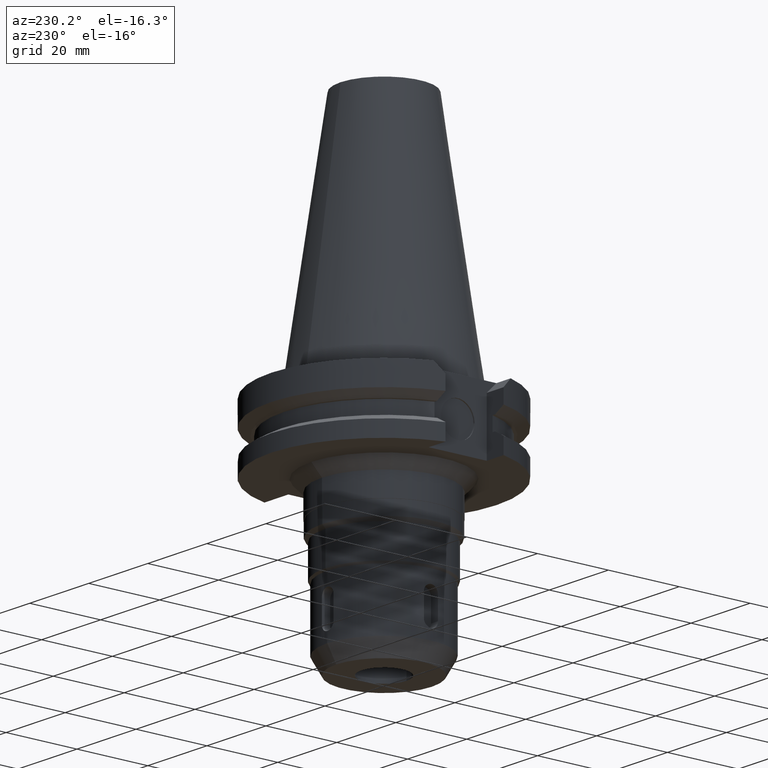
[diagram: clean part render]
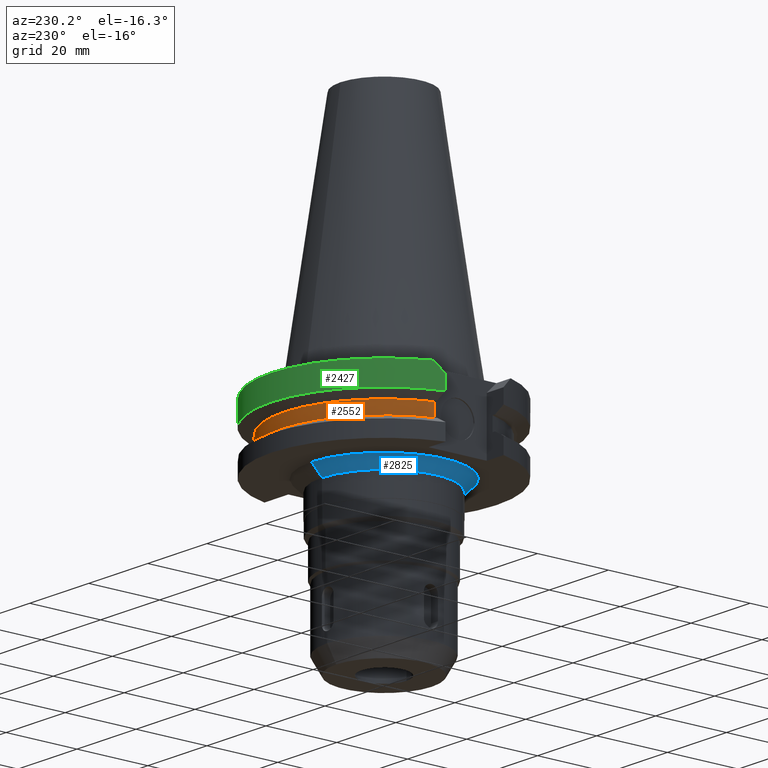
[diagram: same view with three faces highlighted in distinct colors, each labeled with its STEP entity id]
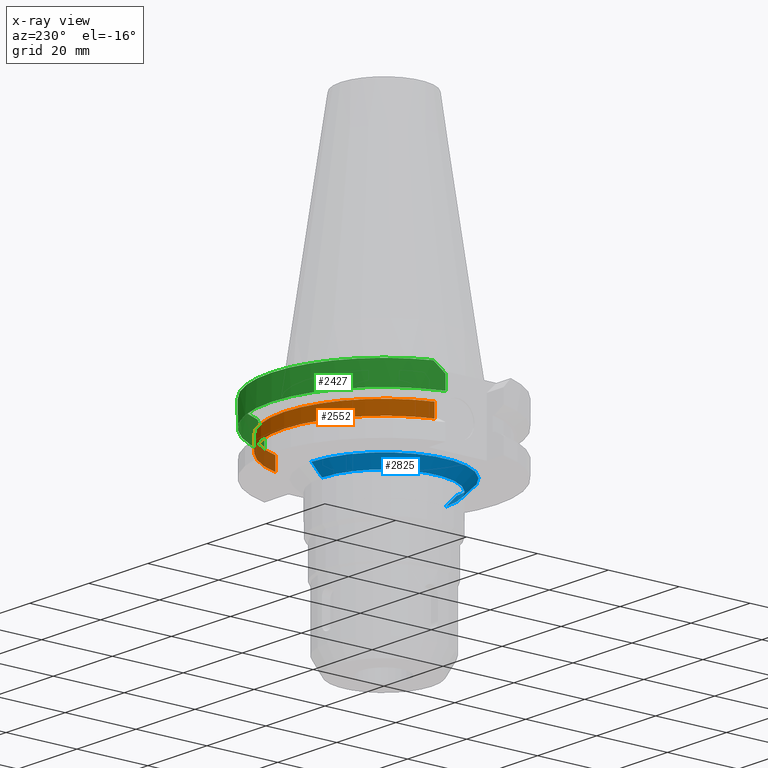
[diagram: x-ray of the same camera — body ghosted, the three highlighted faces saturated]
A machine part, auxiliary view with three faces highlighted in distinct colors.
The next image is the same camera in x-ray (body ghosted, the three faces saturated) — at least one of them is partly hidden behind the body in this view.
Their STEP definitions:

[orange] entity #2552 — the highlighted cylindrical surface (partial cylindrical patch) has radius 28.18 mm, axis along (0, 0, -1).
#453=CARTESIAN_POINT('',(0.E0,2.141141847459E-14,-1.30475E1));
#454=DIRECTION('',(0.E0,0.E0,1.E0));
#455=DIRECTION('',(9.568350128908E-1,2.906316536551E-1,0.E0));
#456=AXIS2_PLACEMENT_3D('',#453,#454,#455);
#461=CARTESIAN_POINT('',(0.E0,2.141141847459E-14,-1.30475E1));
#462=DIRECTION('',(0.E0,0.E0,1.E0));
#463=DIRECTION('',(0.E0,1.E0,0.E0));
#464=AXIS2_PLACEMENT_3D('',#461,#462,#463);
#492=DIRECTION('',(0.E0,0.E0,1.E0));
#493=VECTOR('',#492,3.84E0);
#494=CARTESIAN_POINT('',(2.696361066326E1,8.19E0,-1.30475E1));
#495=LINE('',#494,#493);
#499=DIRECTION('',(0.E0,0.E0,-1.E0));
#500=VECTOR('',#499,3.84E0);
#501=CARTESIAN_POINT('',(-2.696361066326E1,8.19E0,-9.2075E0));
#502=LINE('',#501,#500);
#529=CARTESIAN_POINT('',(0.E0,2.141141847459E-14,-9.2075E0));
#530=DIRECTION('',(0.E0,0.E0,-1.E0));
#531=DIRECTION('',(-9.568350128908E-1,2.906316536551E-1,0.E0));
#532=AXIS2_PLACEMENT_3D('',#529,#530,#531);
#537=CARTESIAN_POINT('',(0.E0,2.141141847459E-14,-9.2075E0));
#538=DIRECTION('',(0.E0,0.E0,-1.E0));
#539=DIRECTION('',(0.E0,1.E0,0.E0));
#540=AXIS2_PLACEMENT_3D('',#537,#538,#539);
#2127=CARTESIAN_POINT('',(-2.696361066326E1,8.19E0,-1.30475E1));
#2128=VERTEX_POINT('',#2127);
#2129=CARTESIAN_POINT('',(-2.696361066326E1,8.19E0,-9.2075E0));
#2130=VERTEX_POINT('',#2129);
#2143=CARTESIAN_POINT('',(2.696361066326E1,8.19E0,-1.30475E1));
#2144=VERTEX_POINT('',#2143);
#2145=CARTESIAN_POINT('',(-6.305166448056E-14,2.818E1,-1.30475E1));
#2146=VERTEX_POINT('',#2145);
#2149=CARTESIAN_POINT('',(2.696361066326E1,8.19E0,-9.2075E0));
#2150=VERTEX_POINT('',#2149);
#2151=CARTESIAN_POINT('',(4.351173924716E-14,2.818E1,-9.2075E0));
#2152=VERTEX_POINT('',#2151);
#2537=CARTESIAN_POINT('',(0.E0,2.141141847459E-14,7.48375E1));
#2538=DIRECTION('',(0.E0,0.E0,-1.E0));
#2539=DIRECTION('',(0.E0,-1.E0,0.E0));
#2540=AXIS2_PLACEMENT_3D('',#2537,#2538,#2539);
#2541=CYLINDRICAL_SURFACE('',#2540,2.818E1);
#2542=ORIENTED_EDGE('',*,*,#2384,.T.);
#2544=ORIENTED_EDGE('',*,*,#2543,.F.);
#2546=ORIENTED_EDGE('',*,*,#2545,.F.);
#2547=ORIENTED_EDGE('',*,*,#2477,.T.);
#2548=ORIENTED_EDGE('',*,*,#2529,.F.);
#2549=ORIENTED_EDGE('',*,*,#2527,.F.);
#2550=EDGE_LOOP('',(#2542,#2544,#2546,#2547,#2548,#2549));
#2551=FACE_OUTER_BOUND('',#2550,.F.);
#457=CIRCLE('',#456,2.818E1);
#465=CIRCLE('',#464,2.818E1);
#533=CIRCLE('',#532,2.818E1);
#541=CIRCLE('',#540,2.818E1);
#2384=EDGE_CURVE('',#2144,#2150,#495,.T.);
#2477=EDGE_CURVE('',#2130,#2128,#502,.T.);
#2527=EDGE_CURVE('',#2144,#2146,#457,.T.);
#2529=EDGE_CURVE('',#2146,#2128,#465,.T.);
#2543=EDGE_CURVE('',#2152,#2150,#541,.T.);
#2545=EDGE_CURVE('',#2130,#2152,#533,.T.);
#2552=ADVANCED_FACE('',(#2551),#2541,.T.);

[blue] entity #2825 — the highlighted conical surface has half-angle 45 deg.
#251=CARTESIAN_POINT('',(0.E0,0.E0,-1.905E1));
#252=DIRECTION('',(0.E0,0.E0,-1.E0));
#253=DIRECTION('',(0.E0,-1.E0,0.E0));
#254=AXIS2_PLACEMENT_3D('',#251,#252,#253);
#848=DIRECTION('',(0.E0,7.071067811866E-1,-7.071067811865E-1));
#849=VECTOR('',#848,4.242640687119E0);
#850=CARTESIAN_POINT('',(0.E0,-2.05E1,-1.905E1));
#851=LINE('',#850,#849);
#855=CARTESIAN_POINT('',(0.E0,0.E0,-2.205E1));
#856=DIRECTION('',(0.E0,0.E0,-1.E0));
#857=DIRECTION('',(0.E0,-1.E0,0.E0));
#858=AXIS2_PLACEMENT_3D('',#855,#856,#857);
#863=DIRECTION('',(0.E0,-7.071067811865E-1,-7.071067811865E-1));
#864=VECTOR('',#863,4.242640687119E0);
#865=CARTESIAN_POINT('',(0.E0,2.05E1,-1.905E1));
#866=LINE('',#865,#864);
#2045=CARTESIAN_POINT('',(0.E0,1.75E1,-2.205E1));
#2046=VERTEX_POINT('',#2045);
#2047=CARTESIAN_POINT('',(0.E0,-1.75E1,-2.205E1));
#2048=VERTEX_POINT('',#2047);
#2049=CARTESIAN_POINT('',(0.E0,2.05E1,-1.905E1));
#2050=VERTEX_POINT('',#2049);
#2051=CARTESIAN_POINT('',(0.E0,-2.05E1,-1.905E1));
#2052=VERTEX_POINT('',#2051);
#2811=CARTESIAN_POINT('',(0.E0,0.E0,-2.055E1));
#2812=DIRECTION('',(0.E0,0.E0,1.E0));
#2813=DIRECTION('',(0.E0,1.E0,0.E0));
#2814=AXIS2_PLACEMENT_3D('',#2811,#2812,#2813);
#2815=CONICAL_SURFACE('',#2814,1.9E1,4.5E1);
#2817=ORIENTED_EDGE('',*,*,#2816,.F.);
#2818=ORIENTED_EDGE('',*,*,#2362,.F.);
#2820=ORIENTED_EDGE('',*,*,#2819,.T.);
#2822=ORIENTED_EDGE('',*,*,#2821,.T.);
#2823=EDGE_LOOP('',(#2817,#2818,#2820,#2822));
#2824=FACE_OUTER_BOUND('',#2823,.F.);
#255=CIRCLE('',#254,2.05E1);
#859=CIRCLE('',#858,1.75E1);
#2362=EDGE_CURVE('',#2052,#2050,#255,.T.);
#2816=EDGE_CURVE('',#2050,#2046,#866,.T.);
#2819=EDGE_CURVE('',#2052,#2048,#851,.T.);
#2821=EDGE_CURVE('',#2048,#2046,#859,.T.);
#2825=ADVANCED_FACE('',(#2824),#2815,.T.);

[green] entity #2427 — the highlighted cylindrical surface (partial cylindrical patch) has radius 31.75 mm, axis along (0, 0, -1).
#131=CARTESIAN_POINT('',(0.E0,2.141141847459E-14,-9.999999999997E-1));
#132=DIRECTION('',(0.E0,0.E0,-1.E0));
#133=DIRECTION('',(-9.393382785306E-1,3.429921259843E-1,0.E0));
#134=AXIS2_PLACEMENT_3D('',#131,#132,#133);
#139=CARTESIAN_POINT('',(0.E0,2.141141847459E-14,-9.999999999997E-1));
#140=DIRECTION('',(0.E0,0.E0,-1.E0));
#141=DIRECTION('',(0.E0,1.E0,0.E0));
#142=AXIS2_PLACEMENT_3D('',#139,#140,#141);
#267=CARTESIAN_POINT('',(3.067550165973E1,8.189999873272E0,-7.601334363420E0));
#298=DIRECTION('',(-8.672789518110E-9,3.248333484780E-8,1.E0));
#299=VECTOR('',#298,3.901334363420E0);
#300=CARTESIAN_POINT('',(3.067550165973E1,8.189999873272E0,-7.601334363420E0));
#301=LINE('',#300,#299);
#305=CARTESIAN_POINT('',(3.067550162589E1,8.19E0,-3.7E0));
#306=CARTESIAN_POINT('',(3.043345108244E1,9.096596073173E0,-2.793403926827E0));
#307=CARTESIAN_POINT('',(3.015017741992E1,9.996685011754E0,-1.893314988246E0));
#308=CARTESIAN_POINT('',(2.982399034335E1,1.089E1,-1.000000000001E0));
#313=CARTESIAN_POINT('',(-2.982399034335E1,1.089E1,-1.000000000001E0));
#314=CARTESIAN_POINT('',(-3.015017741992E1,9.996685011754E0,-1.893314988246E0));
#315=CARTESIAN_POINT('',(-3.043345108244E1,9.096596073173E0,-2.793403926827E0));
#316=CARTESIAN_POINT('',(-3.067550162589E1,8.19E0,-3.7E0));
#321=DIRECTION('',(4.158777744190E-8,1.557667256492E-7,-1.E0));
#322=VECTOR('',#321,3.901327800191E0);
#323=CARTESIAN_POINT('',(-3.067550162589E1,8.19E0,-3.7E0));
#324=LINE('',#323,#322);
#384=CARTESIAN_POINT('',(-3.067550146364E1,8.190000607697E0,-7.601327800191E0));
#545=CARTESIAN_POINT('',(0.E0,1.121722380079E-14,-7.601333230926E0));
#546=DIRECTION('',(0.E0,0.E0,1.E0));
#547=DIRECTION('',(9.661575315241E-1,2.579527559055E-1,0.E0));
#548=AXIS2_PLACEMENT_3D('',#545,#546,#547);
#553=CARTESIAN_POINT('',(0.E0,1.121722380079E-14,-7.601333230926E0));
#554=DIRECTION('',(0.E0,0.E0,1.E0));
#555=DIRECTION('',(0.E0,1.E0,0.E0));
#556=AXIS2_PLACEMENT_3D('',#553,#554,#555);
#2133=VERTEX_POINT('',#384);
#2134=CARTESIAN_POINT('',(-3.067550162589E1,8.19E0,-3.7E0));
#2135=VERTEX_POINT('',#2134);
#2161=VERTEX_POINT('',#267);
#2162=CARTESIAN_POINT('',(0.E0,3.175E1,-7.601333230926E0));
#2163=VERTEX_POINT('',#2162);
#2168=CARTESIAN_POINT('',(3.067550162589E1,8.19E0,-3.7E0));
#2169=VERTEX_POINT('',#2168);
#2170=VERTEX_POINT('',#308);
#2171=CARTESIAN_POINT('',(0.E0,3.175E1,-9.999999999997E-1));
#2172=VERTEX_POINT('',#2171);
#2173=CARTESIAN_POINT('',(-2.982399034335E1,1.089E1,-9.999999999997E-1));
#2174=VERTEX_POINT('',#2173);
#2408=CARTESIAN_POINT('',(0.E0,2.141141847459E-14,7.48375E1));
#2409=DIRECTION('',(0.E0,0.E0,-1.E0));
#2410=DIRECTION('',(0.E0,-1.E0,0.E0));
#2411=AXIS2_PLACEMENT_3D('',#2408,#2409,#2410);
#2412=CYLINDRICAL_SURFACE('',#2411,3.175E1);
#2413=ORIENTED_EDGE('',*,*,#2378,.T.);
#2414=ORIENTED_EDGE('',*,*,#2400,.T.);
#2415=ORIENTED_EDGE('',*,*,#2306,.F.);
#2416=ORIENTED_EDGE('',*,*,#2304,.F.);
#2418=ORIENTED_EDGE('',*,*,#2417,.T.);
#2420=ORIENTED_EDGE('',*,*,#2419,.T.);
#2422=ORIENTED_EDGE('',*,*,#2421,.F.);
#2424=ORIENTED_EDGE('',*,*,#2423,.F.);
#2425=EDGE_LOOP('',(#2413,#2414,#2415,#2416,#2418,#2420,#2422,#2424));
#2426=FACE_OUTER_BOUND('',#2425,.F.);
#135=CIRCLE('',#134,3.175E1);
#143=CIRCLE('',#142,3.175E1);
#309=B_SPLINE_CURVE_WITH_KNOTS('',3,(#305,#306,#307,#308),.UNSPECIFIED.,.F.,.F.,
(4,4),(0.E0,1.E0),.UNSPECIFIED.);
#317=B_SPLINE_CURVE_WITH_KNOTS('',3,(#313,#314,#315,#316),.UNSPECIFIED.,.F.,.F.,
(4,4),(0.E0,1.E0),.UNSPECIFIED.);
#549=CIRCLE('',#548,3.175E1);
#557=CIRCLE('',#556,3.175E1);
#2304=EDGE_CURVE('',#2174,#2172,#135,.T.);
#2306=EDGE_CURVE('',#2172,#2170,#143,.T.);
#2378=EDGE_CURVE('',#2161,#2169,#301,.T.);
#2400=EDGE_CURVE('',#2169,#2170,#309,.T.);
#2417=EDGE_CURVE('',#2174,#2135,#317,.T.);
#2419=EDGE_CURVE('',#2135,#2133,#324,.T.);
#2421=EDGE_CURVE('',#2163,#2133,#557,.T.);
#2423=EDGE_CURVE('',#2161,#2163,#549,.T.);
#2427=ADVANCED_FACE('',(#2426),#2412,.T.);